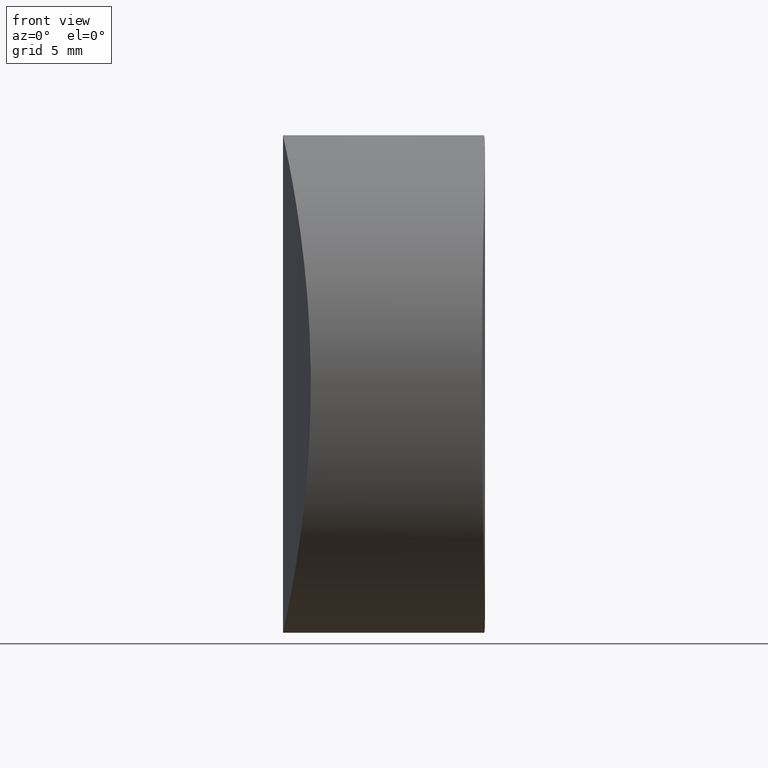
[diagram: clean part render]
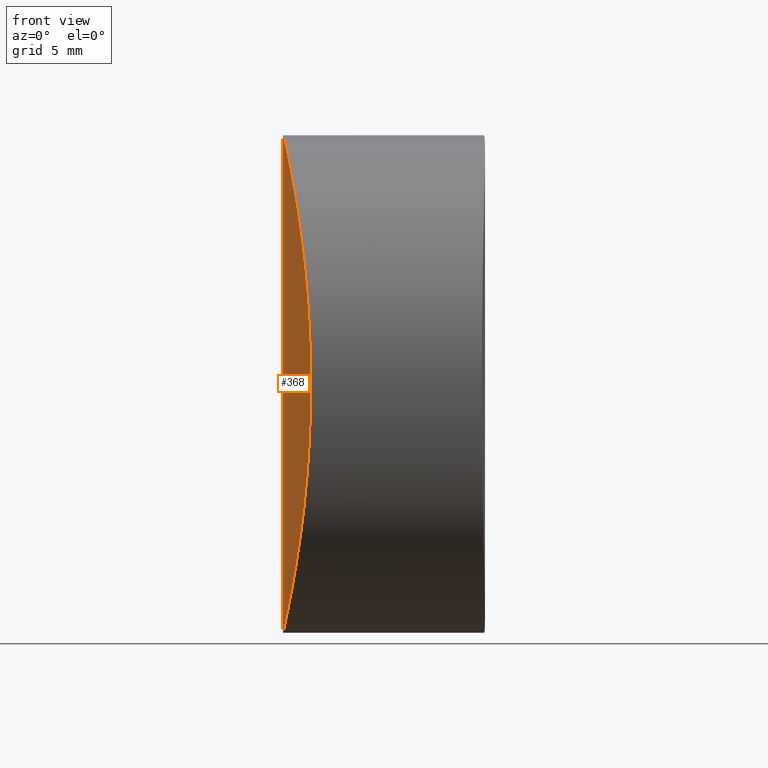
[diagram: same view with one face highlighted and labeled with its STEP entity id]
A machine part, front view. The second image highlights one B-rep face of the part: STEP entity #368.
In plain terms, the highlighted cylindrical surface (partial cylindrical patch) has radius 53 mm, axis along (-0, -0, -1).
Its self-contained STEP definition (entity closure, byte-faithful):
#10 = CARTESIAN_POINT ( 'NONE',  ( 0.3215832185379938757, -5.864597404010304160, 1.547203390245412979 ) ) ;
#12 = CARTESIAN_POINT ( 'NONE',  ( 0.9797753914413596110, -10.15294469353523610, 17.56433159691572854 ) ) ;
#13 = CARTESIAN_POINT ( 'NONE',  ( 0.1327722309560153691, -3.767249703045921105, 0.6164223081135538074 ) ) ;
#15 = CARTESIAN_POINT ( 'NONE',  ( 0.08547653528528931233, -3.031360884360567720, 0.3929793506003035342 ) ) ;
#19 = CARTESIAN_POINT ( 'NONE',  ( 0.1340338147175385852, -3.784771414356614017, 22.77756085057004753 ) ) ;
#21 = EDGE_CURVE ( 'NONE', #98, #37, #339, .T. ) ;
#23 = CARTESIAN_POINT ( 'NONE',  ( -6.938893903907228378E-15, 0.000000000000000000, 23.39999999999999858 ) ) ;
#26 = CARTESIAN_POINT ( 'NONE',  ( -7.854126258487518142E-15, 0.000000000000000000, 23.39999999999999858 ) ) ;
#30 = DIRECTION ( 'NONE',  ( -0.000000000000000000, -0.000000000000000000, -1.000000000000000000 ) ) ;
#37 = VERTEX_POINT ( 'NONE', #26 ) ;
#44 = CARTESIAN_POINT ( 'NONE',  ( 0.1601529824100869359, -4.132389128636270392, 0.7473699891895942971 ) ) ;
#46 = LINE ( 'NONE', #23, #255 ) ;
#48 = CARTESIAN_POINT ( 'NONE',  ( 1.220034013377217397, -11.30699716974665847, 14.73144394912754862 ) ) ;
#55 = EDGE_CURVE ( 'NONE', #37, #98, #46, .T. ) ;
#69 = ORIENTED_EDGE ( 'NONE', *, *, #21, .T. ) ;
#73 = CARTESIAN_POINT ( 'NONE',  ( 1.142939644842288827, -10.94840604358787495, 7.556661540344341788 ) ) ;
#75 = CARTESIAN_POINT ( 'NONE',  ( 0.01698234600103291914, -1.536791948663455587, 0.07625841458366722225 ) ) ;
#79 = CARTESIAN_POINT ( 'NONE',  ( 1.170483720502808467, -11.07765129290995887, 7.915495823722440427 ) ) ;
#84 = CARTESIAN_POINT ( 'NONE',  ( 0.06623383273317710873, -2.675778441899378635, 23.09644993657084200 ) ) ;
#87 = CARTESIAN_POINT ( 'NONE',  ( -7.854126258487518142E-15, 0.000000000000000000, 23.39999999999999858 ) ) ;
#92 = AXIS2_PLACEMENT_3D ( 'NONE', #256, #30, #111 ) ;
#95 = ORIENTED_EDGE ( 'NONE', *, *, #55, .T. ) ;
#98 = VERTEX_POINT ( 'NONE', #239 ) ;
#101 = CARTESIAN_POINT ( 'NONE',  ( 0.4804620058025553253, -7.126560350480390049, 2.412945439528205505 ) ) ;
#103 = CARTESIAN_POINT ( 'NONE',  ( 1.239727250049666996, -11.39649884109566713, 9.024429991333606793 ) ) ;
#106 = CARTESIAN_POINT ( 'NONE',  ( 0.6925517765873338005, -8.544287460014489355, 19.70185015432539188 ) ) ;
#107 = CARTESIAN_POINT ( 'NONE',  ( 0.06547294455947486047, -2.660134906578288216, 0.3000238261956274521 ) ) ;
#109 = CARTESIAN_POINT ( 'NONE',  ( 1.240488670631284096, -11.39994841527490799, 14.36024991735414069 ) ) ;
#110 = CYLINDRICAL_SURFACE ( 'NONE', #92, 53.00000000000000711 ) ;
#111 = DIRECTION ( 'NONE',  ( -1.000000000000000000, 0.000000000000000000, 0.000000000000000000 ) ) ;
#131 = CARTESIAN_POINT ( 'NONE',  ( 0.5651351972917253441, -7.738275292281461049, 20.50834331003379063 ) ) ;
#135 = CARTESIAN_POINT ( 'NONE',  ( 0.8610071085577148953, -9.516928802657400155, 18.51643117197648891 ) ) ;
#158 = CARTESIAN_POINT ( 'NONE',  ( -9.778783617814083839E-15, -0.7751027746439268507, -2.408961701991230164E-15 ) ) ;
#162 = CARTESIAN_POINT ( 'NONE',  ( 0.9771945648685066432, -10.13220136009002026, 5.837047885766070365 ) ) ;
#164 = CARTESIAN_POINT ( 'NONE',  ( 1.307540284935838404, -11.69998327378136160, 12.47534063427469064 ) ) ;
#169 = CARTESIAN_POINT ( 'NONE',  ( 1.171749971878573104, -11.08357169846447299, 15.46726370438259401 ) ) ;
#192 = CARTESIAN_POINT ( 'NONE',  ( 1.290115340050689063, -11.62376498352063514, 10.15937336341435682 ) ) ;
#194 = CARTESIAN_POINT ( 'NONE',  ( 0.2536814845868684554, -5.190408766158909337, 22.19263515830489197 ) ) ;
#195 = CARTESIAN_POINT ( 'NONE',  ( 1.307547855282089166, -11.70001672077195565, 10.92516424993572954 ) ) ;
#218 = CARTESIAN_POINT ( 'NONE',  ( 0.9388078466891109919, -9.933760670759934186, 5.506615040261237937 ) ) ;
#223 = CARTESIAN_POINT ( 'NONE',  ( 0.3242419592492534197, -5.863358672426279838, 21.83196727213421440 ) ) ;
#224 = CARTESIAN_POINT ( 'NONE',  ( 1.218841693716179897, -11.30153796584996861, 8.648431610790327184 ) ) ;
#227 = DIRECTION ( 'NONE',  ( -0.000000000000000000, -0.000000000000000000, -1.000000000000000000 ) ) ;
#229 = CARTESIAN_POINT ( 'NONE',  ( -7.833548925751605227E-15, -0.7750634300982607305, 23.40000000000000924 ) ) ;
#239 = CARTESIAN_POINT ( 'NONE',  ( -9.765032587493219707E-15, 2.076112862454337734E-31, -7.001265857959861659E-17 ) ) ;
#244 = CARTESIAN_POINT ( 'NONE',  ( 0.2503169266463144971, -5.193768061037064676, 1.188018760250070027 ) ) ;
#246 = CARTESIAN_POINT ( 'NONE',  ( 0.5643733289401888786, -7.719766134166830440, 2.899860474288485257 ) ) ;
#248 = CARTESIAN_POINT ( 'NONE',  ( 0.3621788510410408612, -6.193806535695959070, 21.63349912525938734 ) ) ;
#249 = CARTESIAN_POINT ( 'NONE',  ( 0.4392355234242918960, -6.816766973138593144, 2.183310267668204130 ) ) ;
#255 = VECTOR ( 'NONE', #227, 1000.000000000000000 ) ;
#256 = CARTESIAN_POINT ( 'NONE',  ( 53.00000000000000000, 0.000000000000000000, 23.39999999999999858 ) ) ;
#267 = EDGE_LOOP ( 'NONE', ( #69, #95 ) ) ;
#276 = CARTESIAN_POINT ( 'NONE',  ( 0.2208723770266134145, -4.846449283441942590, 22.35583415406195229 ) ) ;
#277 = CARTESIAN_POINT ( 'NONE',  ( 0.7343117612305154474, -8.808752986264138940, 3.962187407336911438 ) ) ;
#279 = CARTESIAN_POINT ( 'NONE',  ( 1.052078711988808868, -10.51206384222219192, 16.89358492180543081 ) ) ;
#280 = CARTESIAN_POINT ( 'NONE',  ( 0.8194790661107261842, -9.287317321552414739, 18.82621536022386621 ) ) ;
#296 = CARTESIAN_POINT ( 'NONE',  ( 1.048728294245750980, -10.49281458417401680, 6.509956262481471079 ) ) ;
#298 = CARTESIAN_POINT ( 'NONE',  ( -9.765032587493219707E-15, 2.076112862454337734E-31, -7.001265857959861659E-17 ) ) ;
#302 = CARTESIAN_POINT ( 'NONE',  ( 0.1610493055818608410, -4.143630390362557314, 22.64829664212256688 ) ) ;
#303 = CARTESIAN_POINT ( 'NONE',  ( 1.290110482462538899, -11.62371170444175128, 13.23699062679897054 ) ) ;
#304 = CARTESIAN_POINT ( 'NONE',  ( 0.7351699729799257010, -8.800486930276360198, 19.41936773197992849 ) ) ;
#305 = FACE_OUTER_BOUND ( 'NONE', #267, .T. ) ;
#330 = CARTESIAN_POINT ( 'NONE',  ( 0.6068906836669444305, -8.002260319940322830, 3.156095857574405805 ) ) ;
#332 = CARTESIAN_POINT ( 'NONE',  ( 1.143832226935844298, -10.95264200930137832, 15.83235231518651709 ) ) ;
#336 = CARTESIAN_POINT ( 'NONE',  ( 0.08666109090798822245, -3.051793055554226086, 23.00147814239729982 ) ) ;
#339 = B_SPLINE_CURVE_WITH_KNOTS ( 'NONE', 3,
 ( #298, #158, #75, #107, #15, #13, #44, #244, #10, #249, #101, #246, #330, #277, #356, #218, #162, #296, #358, #73, #79, #224, #103, #192, #195, #164, #303, #109, #48, #169, #332, #279, #12, #135, #280, #304, #106, #131, #353, #248, #223, #194, #276, #302, #19, #336, #84, #365, #229, #87 ),
 .UNSPECIFIED., .F., .F.,
 ( 4, 2, 2, 2, 2, 2, 2, 2, 2, 2, 2, 2, 2, 2, 2, 2, 2, 2, 2, 2, 2, 2, 2, 2, 4 ),
 ( 0.01833382952556263101, 0.02062564345002551938, 0.02177155041225696183, 0.02291745737448840428, 0.02520927129895129265, 0.02635517826118274204, 0.02750108522341418449, 0.02979289914787707633, 0.03093880611010852572, 0.03208471307233996817, 0.03323062003457141755, 0.03437652699680286694, 0.03666834092126576572, 0.03896015484572866450, 0.04010606180796010001, 0.04125196877019154246, 0.04354378269465444123, 0.04468968965688589756, 0.04583559661911734001, 0.04812741054358024573, 0.04927331750581170206, 0.05041922446804315838, 0.05156513143027461471, 0.05271103839250606410, 0.05500285231696897675 ),
 .UNSPECIFIED. ) ;
#353 = CARTESIAN_POINT ( 'NONE',  ( 0.4807563894973554963, -7.151424293548708455, 20.99180863267619657 ) ) ;
#356 = CARTESIAN_POINT ( 'NONE',  ( 0.8191136885652348099, -9.292169913680146109, 4.549052399218969533 ) ) ;
#358 = CARTESIAN_POINT ( 'NONE',  ( 1.082062615822121820, -10.65598805115349990, 6.853891546796850420 ) ) ;
#365 = CARTESIAN_POINT ( 'NONE',  ( 0.01698964118050149547, -1.540836461563728665, 23.32373729513498617 ) ) ;
#368 = ADVANCED_FACE ( 'NONE', ( #305 ), #110, .T. ) ;